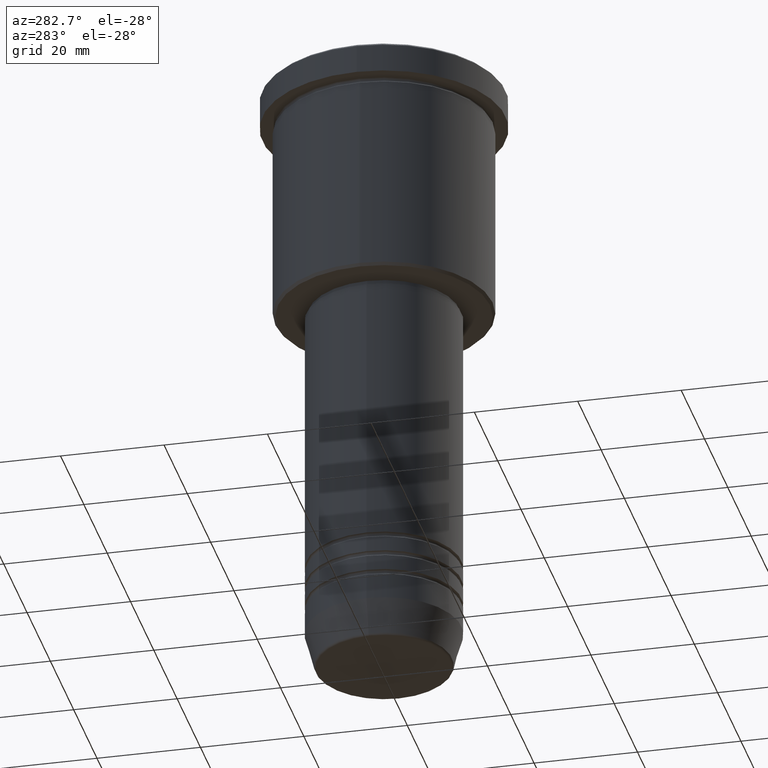
[diagram: clean part render]
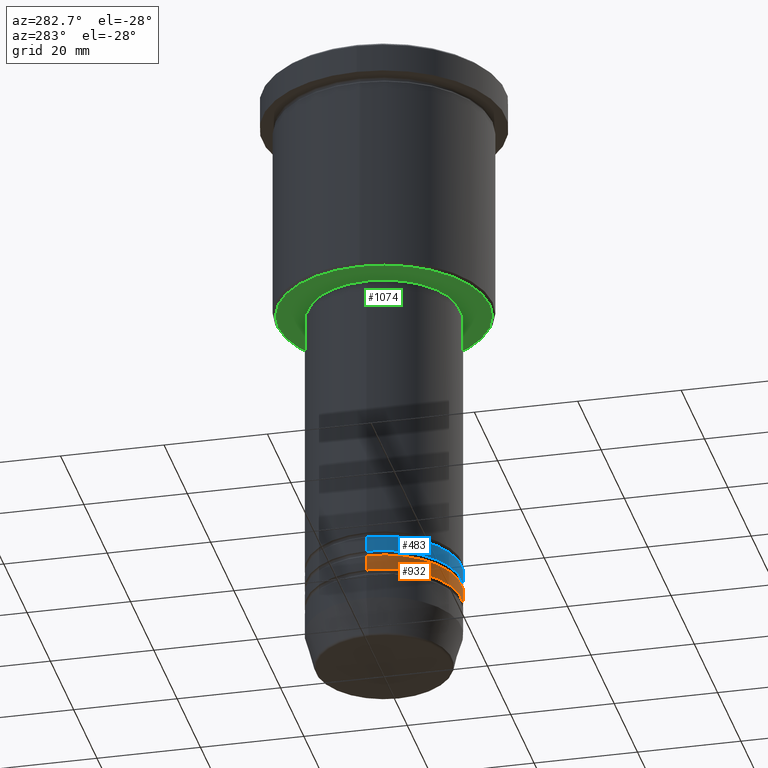
[diagram: same view with three faces highlighted in distinct colors, each labeled with its STEP entity id]
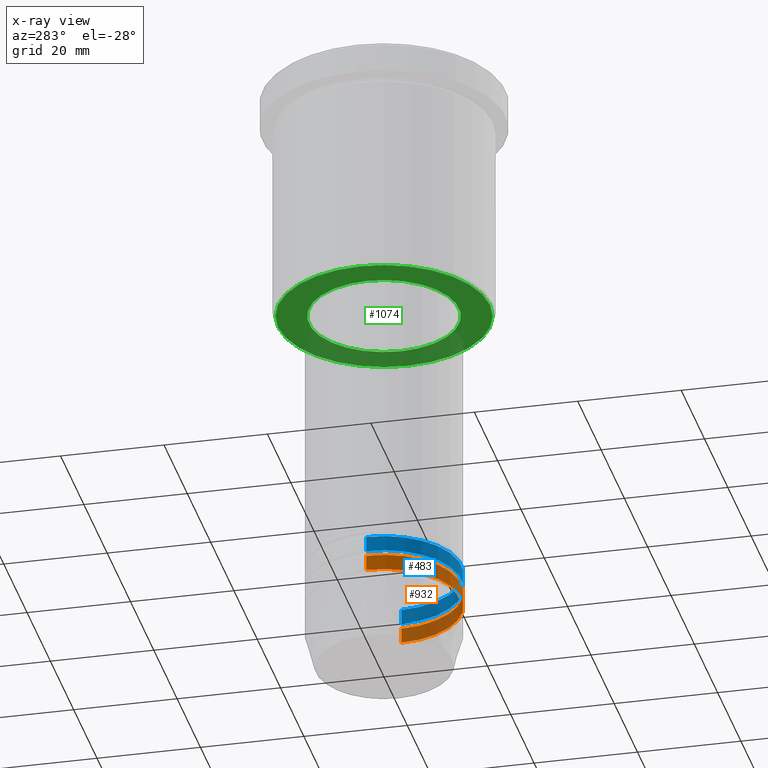
[diagram: x-ray of the same camera — body ghosted, the three highlighted faces saturated]
A machine part, auxiliary view with three faces highlighted in distinct colors.
The next image is the same camera in x-ray (body ghosted, the three faces saturated) — at least one of them is partly hidden behind the body in this view.
Their STEP definitions:

[orange] entity #932 — the highlighted cylindrical surface (partial cylindrical patch) has radius 15 mm, axis along (-0, -0, 1).
#44 = CARTESIAN_POINT ( 'NONE',  ( 0.000000000000000000, 0.000000000000000000, 0.000000000000000000 ) ) ;
#68 = CIRCLE ( 'NONE', #1031, 15.00000000000000000 ) ;
#91 = EDGE_CURVE ( 'NONE', #105, #303, #68, .T. ) ;
#105 = VERTEX_POINT ( 'NONE', #640 ) ;
#159 = DIRECTION ( 'NONE',  ( -0.000000000000000000, -0.000000000000000000, 1.000000000000000000 ) ) ;
#185 = DIRECTION ( 'NONE',  ( -0.000000000000000000, -0.000000000000000000, 1.000000000000000000 ) ) ;
#200 = EDGE_CURVE ( 'NONE', #864, #303, #1005, .T. ) ;
#224 = FACE_OUTER_BOUND ( 'NONE', #800, .T. ) ;
#229 = EDGE_CURVE ( 'NONE', #528, #864, #360, .T. ) ;
#244 = LINE ( 'NONE', #1164, #1054 ) ;
#282 = CARTESIAN_POINT ( 'NONE',  ( 15.00000000000000000, 0.000000000000000000, -107.9999999999998863 ) ) ;
#302 = DIRECTION ( 'NONE',  ( -0.000000000000000000, -0.000000000000000000, 1.000000000000000000 ) ) ;
#303 = VERTEX_POINT ( 'NONE', #859 ) ;
#360 = CIRCLE ( 'NONE', #441, 15.00000000000000000 ) ;
#420 = DIRECTION ( 'NONE',  ( 1.000000000000000000, 0.000000000000000000, 0.000000000000000000 ) ) ;
#441 = AXIS2_PLACEMENT_3D ( 'NONE', #567, #764, #1120 ) ;
#528 = VERTEX_POINT ( 'NONE', #543 ) ;
#529 = ORIENTED_EDGE ( 'NONE', *, *, #200, .T. ) ;
#535 = EDGE_CURVE ( 'NONE', #528, #105, #244, .T. ) ;
#543 = CARTESIAN_POINT ( 'NONE',  ( -15.00000000000000000, 1.836970198721029589E-15, -107.9999999999998863 ) ) ;
#551 = DIRECTION ( 'NONE',  ( -0.000000000000000000, -0.000000000000000000, 1.000000000000000000 ) ) ;
#567 = CARTESIAN_POINT ( 'NONE',  ( 0.000000000000000000, 0.000000000000000000, -107.9999999999998863 ) ) ;
#640 = CARTESIAN_POINT ( 'NONE',  ( -15.00000000000000000, 1.836970198721029589E-15, -104.9999999999999005 ) ) ;
#764 = DIRECTION ( 'NONE',  ( -0.000000000000000000, -0.000000000000000000, 1.000000000000000000 ) ) ;
#773 = CYLINDRICAL_SURFACE ( 'NONE', #827, 15.00000000000000000 ) ;
#798 = CARTESIAN_POINT ( 'NONE',  ( 0.000000000000000000, 0.000000000000000000, -104.9999999999999005 ) ) ;
#800 = EDGE_LOOP ( 'NONE', ( #886, #1140, #529, #822 ) ) ;
#822 = ORIENTED_EDGE ( 'NONE', *, *, #91, .F. ) ;
#827 = AXIS2_PLACEMENT_3D ( 'NONE', #44, #302, #420 ) ;
#859 = CARTESIAN_POINT ( 'NONE',  ( 15.00000000000000000, 0.000000000000000000, -104.9999999999999005 ) ) ;
#864 = VERTEX_POINT ( 'NONE', #282 ) ;
#878 = DIRECTION ( 'NONE',  ( 1.000000000000000000, 0.000000000000000000, 0.000000000000000000 ) ) ;
#886 = ORIENTED_EDGE ( 'NONE', *, *, #535, .F. ) ;
#925 = CARTESIAN_POINT ( 'NONE',  ( 15.00000000000000000, 0.000000000000000000, 0.000000000000000000 ) ) ;
#932 = ADVANCED_FACE ( 'NONE', ( #224 ), #773, .T. ) ;
#998 = VECTOR ( 'NONE', #185, 1000.000000000000000 ) ;
#1005 = LINE ( 'NONE', #925, #998 ) ;
#1031 = AXIS2_PLACEMENT_3D ( 'NONE', #798, #551, #878 ) ;
#1054 = VECTOR ( 'NONE', #159, 1000.000000000000000 ) ;
#1120 = DIRECTION ( 'NONE',  ( 1.000000000000000000, 0.000000000000000000, 0.000000000000000000 ) ) ;
#1140 = ORIENTED_EDGE ( 'NONE', *, *, #229, .T. ) ;
#1164 = CARTESIAN_POINT ( 'NONE',  ( -15.00000000000000000, 1.836970198721029589E-15, 0.000000000000000000 ) ) ;

[blue] entity #483 — the highlighted cylindrical surface (partial cylindrical patch) has radius 15 mm, axis along (-0, -0, 1).
#57 = CARTESIAN_POINT ( 'NONE',  ( 0.000000000000000000, 0.000000000000000000, -103.9999999999999147 ) ) ;
#67 = CYLINDRICAL_SURFACE ( 'NONE', #461, 15.00000000000000178 ) ;
#114 = VERTEX_POINT ( 'NONE', #254 ) ;
#133 = DIRECTION ( 'NONE',  ( 1.000000000000000000, 0.000000000000000000, 0.000000000000000000 ) ) ;
#139 = CIRCLE ( 'NONE', #689, 15.00000000000000355 ) ;
#223 = ORIENTED_EDGE ( 'NONE', *, *, #316, .F. ) ;
#254 = CARTESIAN_POINT ( 'NONE',  ( -15.00000000000000533, 1.836970198721030378E-15, -103.9999999999999147 ) ) ;
#273 = CARTESIAN_POINT ( 'NONE',  ( 15.00000000000000178, 0.000000000000000000, 0.000000000000000000 ) ) ;
#316 = EDGE_CURVE ( 'NONE', #848, #1174, #1053, .T. ) ;
#372 = DIRECTION ( 'NONE',  ( 1.000000000000000000, 0.000000000000000000, 0.000000000000000000 ) ) ;
#423 = CARTESIAN_POINT ( 'NONE',  ( -15.00000000000000178, 1.836970198721029983E-15, 0.000000000000000000 ) ) ;
#433 = DIRECTION ( 'NONE',  ( -0.000000000000000000, -0.000000000000000000, 1.000000000000000000 ) ) ;
#446 = EDGE_CURVE ( 'NONE', #114, #942, #139, .T. ) ;
#461 = AXIS2_PLACEMENT_3D ( 'NONE', #1182, #1175, #372 ) ;
#483 = ADVANCED_FACE ( 'NONE', ( #553 ), #67, .T. ) ;
#506 = LINE ( 'NONE', #423, #1033 ) ;
#530 = CARTESIAN_POINT ( 'NONE',  ( 0.000000000000000000, 0.000000000000000000, -100.9999999999999005 ) ) ;
#553 = FACE_OUTER_BOUND ( 'NONE', #955, .T. ) ;
#555 = AXIS2_PLACEMENT_3D ( 'NONE', #530, #785, #133 ) ;
#575 = CARTESIAN_POINT ( 'NONE',  ( -15.00000000000000000, 1.836970198721029983E-15, -100.9999999999999005 ) ) ;
#645 = ORIENTED_EDGE ( 'NONE', *, *, #851, .T. ) ;
#651 = DIRECTION ( 'NONE',  ( -0.000000000000000000, -0.000000000000000000, 1.000000000000000000 ) ) ;
#689 = AXIS2_PLACEMENT_3D ( 'NONE', #57, #433, #711 ) ;
#703 = DIRECTION ( 'NONE',  ( -0.000000000000000000, -0.000000000000000000, 1.000000000000000000 ) ) ;
#711 = DIRECTION ( 'NONE',  ( 1.000000000000000000, 0.000000000000000000, 0.000000000000000000 ) ) ;
#740 = EDGE_CURVE ( 'NONE', #114, #848, #506, .T. ) ;
#751 = LINE ( 'NONE', #273, #1055 ) ;
#785 = DIRECTION ( 'NONE',  ( -0.000000000000000000, -0.000000000000000000, 1.000000000000000000 ) ) ;
#848 = VERTEX_POINT ( 'NONE', #575 ) ;
#851 = EDGE_CURVE ( 'NONE', #942, #1174, #751, .T. ) ;
#862 = CARTESIAN_POINT ( 'NONE',  ( 15.00000000000000355, 0.000000000000000000, -103.9999999999999147 ) ) ;
#942 = VERTEX_POINT ( 'NONE', #862 ) ;
#955 = EDGE_LOOP ( 'NONE', ( #967, #1066, #645, #223 ) ) ;
#967 = ORIENTED_EDGE ( 'NONE', *, *, #740, .F. ) ;
#987 = CARTESIAN_POINT ( 'NONE',  ( 15.00000000000000000, 0.000000000000000000, -100.9999999999999005 ) ) ;
#1033 = VECTOR ( 'NONE', #703, 1000.000000000000000 ) ;
#1053 = CIRCLE ( 'NONE', #555, 15.00000000000000000 ) ;
#1055 = VECTOR ( 'NONE', #651, 1000.000000000000000 ) ;
#1066 = ORIENTED_EDGE ( 'NONE', *, *, #446, .T. ) ;
#1174 = VERTEX_POINT ( 'NONE', #987 ) ;
#1175 = DIRECTION ( 'NONE',  ( -0.000000000000000000, -0.000000000000000000, 1.000000000000000000 ) ) ;
#1182 = CARTESIAN_POINT ( 'NONE',  ( 0.000000000000000000, 0.000000000000000000, 0.000000000000000000 ) ) ;

[green] entity #1074 — the highlighted planar face has unit normal (0, 0, -1).
#13 = DIRECTION ( 'NONE',  ( -1.000000000000000000, 0.000000000000000000, 0.000000000000000000 ) ) ;
#22 = DIRECTION ( 'NONE',  ( 0.000000000000000000, 0.000000000000000000, -1.000000000000000000 ) ) ;
#83 = FACE_OUTER_BOUND ( 'NONE', #263, .T. ) ;
#120 = CIRCLE ( 'NONE', #276, 20.49999999999998934 ) ;
#165 = AXIS2_PLACEMENT_3D ( 'NONE', #406, #766, #1121 ) ;
#167 = VERTEX_POINT ( 'NONE', #810 ) ;
#170 = EDGE_CURVE ( 'NONE', #928, #167, #727, .T. ) ;
#180 = EDGE_CURVE ( 'NONE', #1043, #599, #1010, .T. ) ;
#263 = EDGE_LOOP ( 'NONE', ( #480, #1155 ) ) ;
#276 = AXIS2_PLACEMENT_3D ( 'NONE', #837, #22, #1111 ) ;
#306 = DIRECTION ( 'NONE',  ( -0.000000000000000000, -0.000000000000000000, 1.000000000000000000 ) ) ;
#387 = ORIENTED_EDGE ( 'NONE', *, *, #1114, .T. ) ;
#400 = AXIS2_PLACEMENT_3D ( 'NONE', #1081, #1152, #721 ) ;
#406 = CARTESIAN_POINT ( 'NONE',  ( 0.000000000000000000, 0.000000000000000000, -46.00000000000000711 ) ) ;
#476 = AXIS2_PLACEMENT_3D ( 'NONE', #1027, #1088, #13 ) ;
#480 = ORIENTED_EDGE ( 'NONE', *, *, #170, .T. ) ;
#583 = CARTESIAN_POINT ( 'NONE',  ( -14.49999999999999822, 1.775737858763662015E-15, -46.00000000000000711 ) ) ;
#584 = DIRECTION ( 'NONE',  ( 1.000000000000000000, 0.000000000000000000, 0.000000000000000000 ) ) ;
#599 = VERTEX_POINT ( 'NONE', #583 ) ;
#624 = FACE_BOUND ( 'NONE', #1147, .T. ) ;
#668 = EDGE_CURVE ( 'NONE', #167, #928, #120, .T. ) ;
#721 = DIRECTION ( 'NONE',  ( -1.000000000000000000, 0.000000000000000000, -0.000000000000000000 ) ) ;
#727 = CIRCLE ( 'NONE', #476, 20.49999999999998934 ) ;
#766 = DIRECTION ( 'NONE',  ( -0.000000000000000000, -0.000000000000000000, 1.000000000000000000 ) ) ;
#792 = PLANE ( 'NONE',  #400 ) ;
#810 = CARTESIAN_POINT ( 'NONE',  ( -20.49999999999998934, 2.541142108230757480E-15, -46.00000000000000711 ) ) ;
#829 = CIRCLE ( 'NONE', #165, 14.49999999999999822 ) ;
#837 = CARTESIAN_POINT ( 'NONE',  ( 0.000000000000000000, 0.000000000000000000, -46.00000000000000711 ) ) ;
#921 = CARTESIAN_POINT ( 'NONE',  ( 0.000000000000000000, 0.000000000000000000, -46.00000000000000711 ) ) ;
#928 = VERTEX_POINT ( 'NONE', #1117 ) ;
#972 = ORIENTED_EDGE ( 'NONE', *, *, #180, .T. ) ;
#1010 = CIRCLE ( 'NONE', #1129, 14.49999999999999822 ) ;
#1027 = CARTESIAN_POINT ( 'NONE',  ( 0.000000000000000000, 0.000000000000000000, -46.00000000000000711 ) ) ;
#1043 = VERTEX_POINT ( 'NONE', #1122 ) ;
#1074 = ADVANCED_FACE ( 'NONE', ( #83, #624 ), #792, .T. ) ;
#1081 = CARTESIAN_POINT ( 'NONE',  ( 0.000000000000000000, 21.00000000000000000, -46.00000000000000711 ) ) ;
#1088 = DIRECTION ( 'NONE',  ( 0.000000000000000000, 0.000000000000000000, -1.000000000000000000 ) ) ;
#1111 = DIRECTION ( 'NONE',  ( -1.000000000000000000, 0.000000000000000000, 0.000000000000000000 ) ) ;
#1114 = EDGE_CURVE ( 'NONE', #599, #1043, #829, .T. ) ;
#1117 = CARTESIAN_POINT ( 'NONE',  ( 20.49999999999998934, 0.000000000000000000, -46.00000000000000711 ) ) ;
#1121 = DIRECTION ( 'NONE',  ( 1.000000000000000000, 0.000000000000000000, 0.000000000000000000 ) ) ;
#1122 = CARTESIAN_POINT ( 'NONE',  ( 14.49999999999999822, 0.000000000000000000, -46.00000000000000711 ) ) ;
#1129 = AXIS2_PLACEMENT_3D ( 'NONE', #921, #306, #584 ) ;
#1147 = EDGE_LOOP ( 'NONE', ( #972, #387 ) ) ;
#1152 = DIRECTION ( 'NONE',  ( 0.000000000000000000, 0.000000000000000000, -1.000000000000000000 ) ) ;
#1155 = ORIENTED_EDGE ( 'NONE', *, *, #668, .T. ) ;